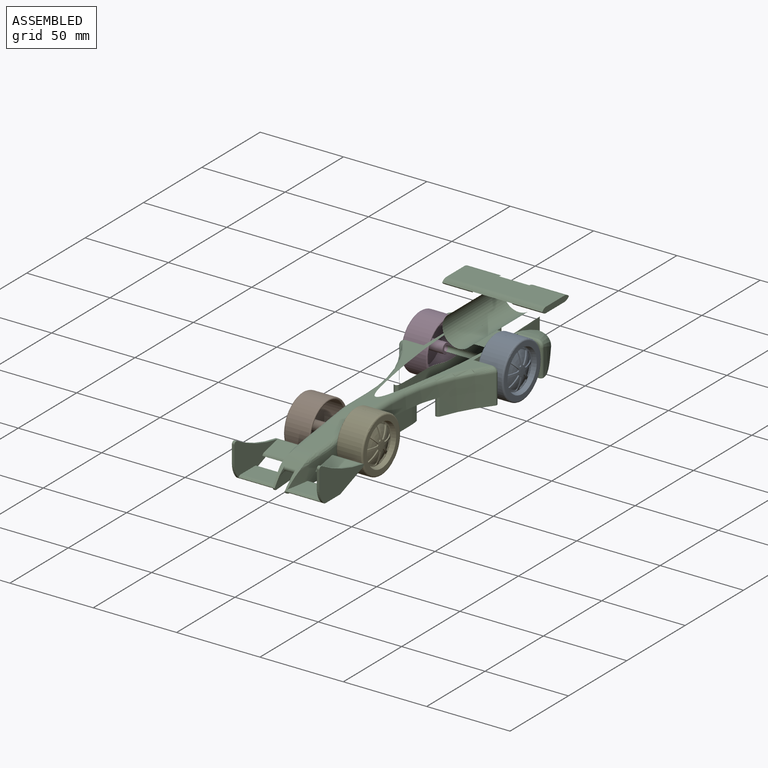
[diagram: assembled view]
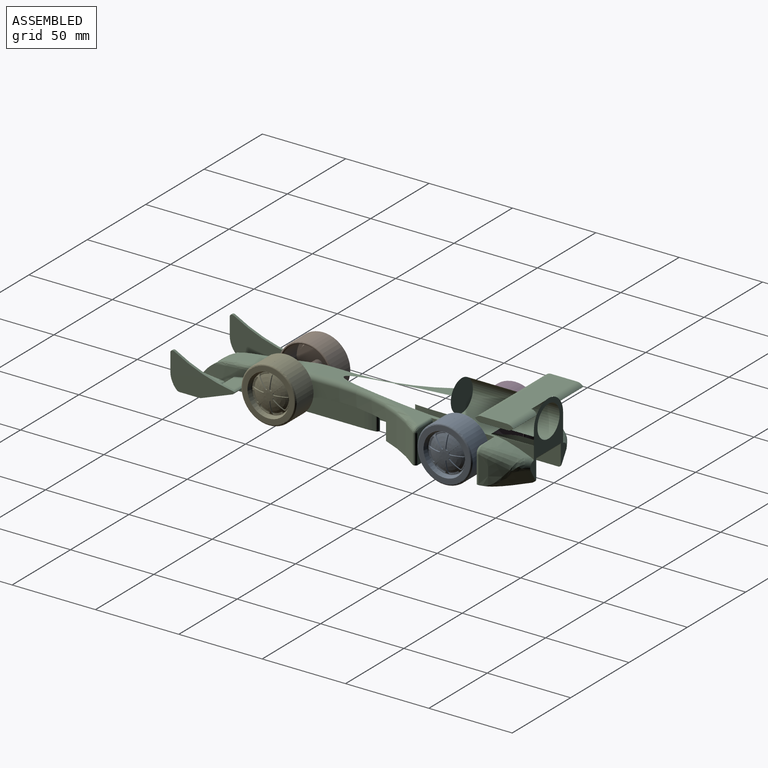
[diagram: assembled view, second angle]
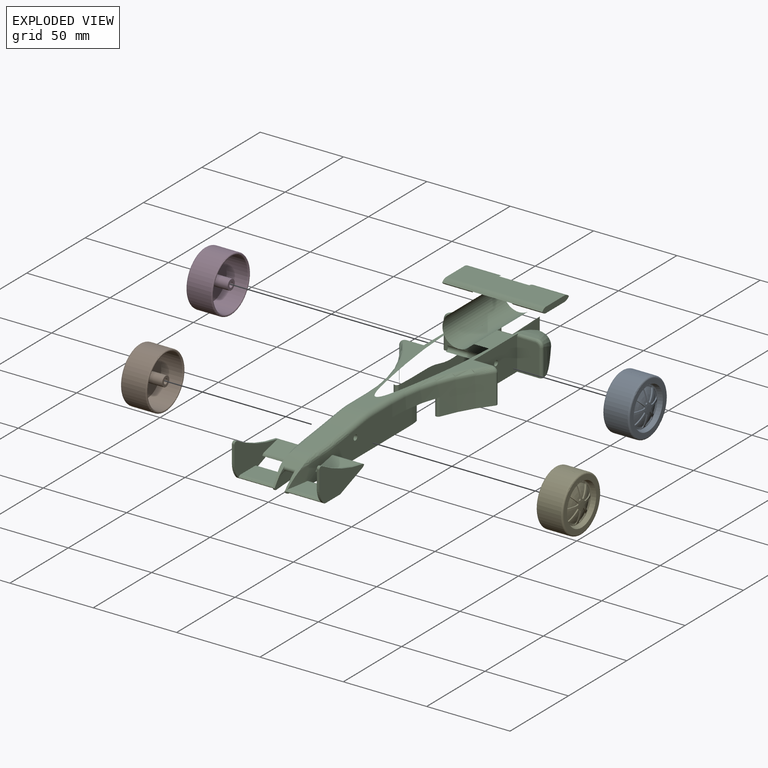
[diagram: exploded view]
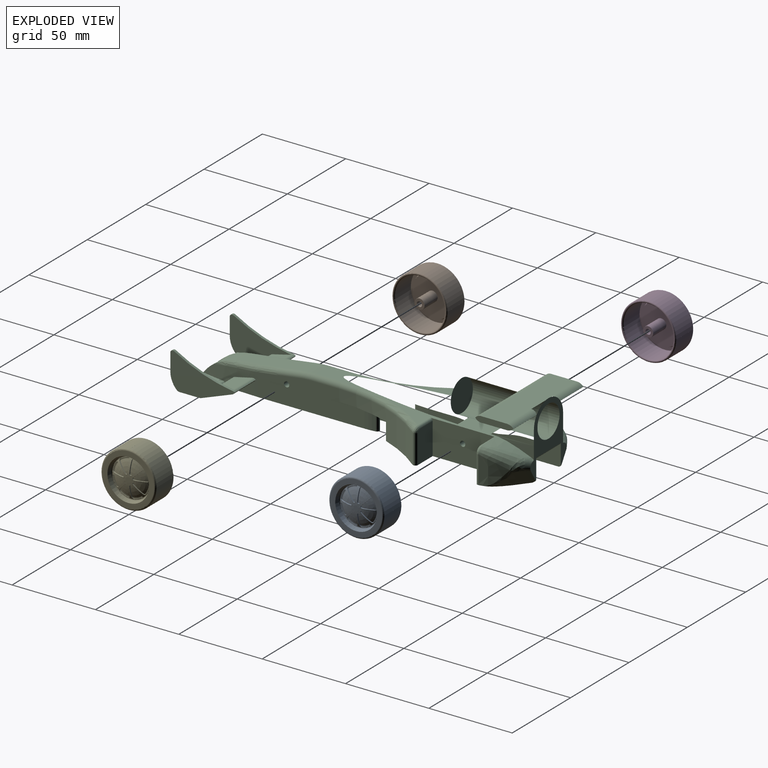
[diagram: exploded view, second angle]
ASSEMBLY  parts=5 mates=4
PART A: 90 faces, bbox 16.1x36.1x36.1 mm
  f0: cylinder r=16.5mm len=16.5mm, axis (1,0,0), area 362.7mm2, adj f1,f3,f86,f88
  f1: torus R=15.5mm, axis (1,0,0), area 159.3mm2, adj f0,f2,f7,f84,f85,f86,f87,f88
  f2: cylinder r=16.5mm len=33mm, axis (1,0,0), area 1088.4mm2, adj f1,f3,f84,f87
  f3: torus R=15.81mm, axis (1,0,0), area 215.3mm2, adj f0,f2,f8,f84,f85,f86,f87,f88
  f4: torus R=13.24mm, axis (1,0,0), area 10.3mm2, adj f7,f15
  f5: cylinder r=1.55mm len=13mm, axis (1,0,0), area 126.6mm2, adj f6,f13
  f6: cone r=1.55mm half-angle=51.1deg, axis (-1,0,0), area 9.7mm2, adj f5
  f7: plane 31x31mm, normal (1,0,0), area 203.7mm2, adj f1,f4
  f8: cylinder r=15.12mm len=30.24mm, axis (1,0,0), area 1282.5mm2, adj f3,f9
  f9: plane 30.24x30.24mm, normal (-1,0,0), area 177.4mm2, adj f8,f10
  f10: cone r=13.12mm half-angle=16.7deg, axis (1,0,0), area 249.3mm2, adj f9,f11
  f11: plane 24.44x24.44mm, normal (-1,0,0), area 439.9mm2, adj f10,f12
  f12: cylinder r=3.05mm len=11.19mm, axis (1,0,0), area 214.4mm2, adj f11,f13
  f13: plane 6.1x6.1mm, normal (-1,0,0), area 21.7mm2, adj f5,f12
  f14: plane 26.24x26.24mm, normal (1,0,0), area 49.9mm2, adj f15,f17
  f15: cylinder r=13.12mm len=26.24mm, axis (1,0,0), area 0.6mm2, adj f4,f14
  f16: plane 3x3mm, normal (1,0,0), area 7.1mm2, adj f61
  f17: cone r=12.5mm half-angle=16.7deg, axis (1,0,0), area 188.9mm2, adj f14,f18
  f18: torus R=11.31mm, axis (1,0,0), area 65.6mm2, adj f17,f24,f30,f36,f42,f48,f54,f60
  f19: cylinder r=0.75mm len=1.28mm, axis (1,0,0), area 1.3mm2, adj f20,f23,f61,f68
  f20: plane 7.03x3.12mm, normal (0,-1,0), area 4.9mm2, adj f19,f21,f61,f68
  f21: cylinder r=1mm len=1.16mm, axis (1,0,0), area 1.1mm2, adj f20,f24,f61,f68,f69
  f22: cylinder r=1mm len=1.52mm, axis (1,0,0), area 1.1mm2, adj f23,f24,f61,f68,f69
  f23: plane 5.1x5.1mm, normal (0,0.71,-0.71), area 4.9mm2, adj f19,f22,f61,f68
  f24: cylinder r=11.05mm len=4.66mm, axis (1,0,0), area 1.8mm2, adj f18,f21,f22,f69
  f25: cylinder r=1mm len=1.16mm, axis (1,0,0), area 1.1mm2, adj f26,f30,f61,f70,f71
  f26: plane 7.03x3.12mm, normal (0,0,-1), area 4.9mm2, adj f25,f27,f61,f71
  f27: cylinder r=0.75mm len=1.28mm, axis (1,0,0), area 1.3mm2, adj f26,f29,f61,f71
  f28: cylinder r=1mm len=1.52mm, axis (1,0,0), area 1.1mm2, adj f29,f30,f61,f70,f71
  f29: plane 5.1x5.1mm, normal (0,-0.71,0.71), area 4.9mm2, adj f27,f28,f61,f71
  f30: cylinder r=11.05mm len=4.66mm, axis (1,0,0), area 1.8mm2, adj f18,f25,f28,f70
  f31: plane 7.03x3.12mm, normal (0,0,1), area 4.9mm2, adj f32,f35,f61,f72
  f32: cylinder r=1mm len=1.16mm, axis (1,0,0), area 1.1mm2, adj f31,f36,f61,f72,f73
  f33: cylinder r=1mm len=1.52mm, axis (1,0,0), area 1.1mm2, adj f34,f36,f61,f72,f73
  f34: plane 5.1x5.1mm, normal (0,-0.71,-0.71), area 4.9mm2, adj f33,f35,f61,f72
  f35: cylinder r=0.75mm len=1.28mm, axis (1,0,0), area 1.3mm2, adj f31,f34,f61,f72
  f36: cylinder r=11.05mm len=4.66mm, axis (1,0,0), area 1.8mm2, adj f18,f32,f33,f73
  f37: plane 5.1x5.1mm, normal (0,0.71,0.71), area 4.9mm2, adj f38,f41,f61,f80
  f38: cylinder r=1mm len=1.52mm, axis (1,0,0), area 1.1mm2, adj f37,f42,f61,f80,f81
  f39: cylinder r=1mm len=1.16mm, axis (1,0,0), area 1.1mm2, adj f40,f42,f61,f80,f81
  f40: plane 7.03x3.12mm, normal (0,-1,0), area 4.9mm2, adj f39,f41,f61,f80
  f41: cylinder r=0.75mm len=1.28mm, axis (1,0,0), area 1.3mm2, adj f37,f40,f61,f80
  f42: cylinder r=11.05mm len=4.66mm, axis (1,0,0), area 1.8mm2, adj f18,f38,f39,f81
  f43: plane 7.03x3.12mm, normal (0,1,0), area 4.9mm2, adj f44,f47,f61,f74
  f44: cylinder r=1mm len=1.16mm, axis (1,0,0), area 1.1mm2, adj f43,f48,f61,f74,f75
  f45: cylinder r=1mm len=1.52mm, axis (1,0,0), area 1.1mm2, adj f46,f48,f61,f74,f75
  f46: plane 5.1x5.1mm, normal (0,-0.71,0.71), area 4.9mm2, adj f45,f47,f61,f74
  f47: cylinder r=0.75mm len=1.28mm, axis (1,0,0), area 1.3mm2, adj f43,f46,f61,f74
  f48: cylinder r=11.05mm len=4.66mm, axis (1,0,0), area 1.8mm2, adj f18,f44,f45,f75
  f49: plane 5.1x5.1mm, normal (0,0.71,-0.71), area 4.9mm2, adj f50,f53,f61,f76
  f50: cylinder r=1mm len=1.52mm, axis (1,0,0), area 1.1mm2, adj f49,f54,f61,f76,f77
  f51: cylinder r=1mm len=1.16mm, axis (1,0,0), area 1.1mm2, adj f52,f54,f61,f76,f77
  f52: plane 7.03x3.12mm, normal (0,0,1), area 4.9mm2, adj f51,f53,f61,f76
  f53: cylinder r=0.75mm len=1.28mm, axis (1,0,0), area 1.3mm2, adj f49,f52,f61,f76
  f54: cylinder r=11.05mm len=4.66mm, axis (1,0,0), area 1.8mm2, adj f18,f50,f51,f77
  f55: plane 7.03x3.12mm, normal (0,0,-1), area 4.9mm2, adj f56,f59,f61,f78
  f56: cylinder r=1mm len=1.16mm, axis (1,0,0), area 1.1mm2, adj f55,f60,f61,f78,f79
  f57: cylinder r=1mm len=1.52mm, axis (1,0,0), area 1.1mm2, adj f58,f60,f61,f78,f79
  f58: plane 5.1x5.1mm, normal (0,0.71,0.71), area 4.9mm2, adj f57,f59,f61,f78
  f59: cylinder r=0.75mm len=1.28mm, axis (1,0,0), area 1.3mm2, adj f55,f58,f61,f78
  f60: cylinder r=11.05mm len=4.66mm, axis (1,0,0), area 1.8mm2, adj f18,f56,f57,f79
  f61: torus R=1.5mm, axis (1,0,0), area 131.6mm2, adj f16,f18,f19,f20,f21,f22,f23,f25
  f62: plane 5.1x5.1mm, normal (0,-0.71,-0.71), area 4.9mm2, adj f61,f63,f66,f82
  f63: cylinder r=1mm len=1.52mm, axis (1,0,0), area 1.1mm2, adj f61,f62,f67,f82,f83
  f64: cylinder r=1mm len=1.16mm, axis (1,0,0), area 1.1mm2, adj f61,f65,f67,f82,f83
  f65: plane 7.03x3.12mm, normal (0,1,0), area 4.9mm2, adj f61,f64,f66,f82
  f66: cylinder r=0.75mm len=1.28mm, axis (1,0,0), area 1.3mm2, adj f61,f62,f65,f82
  f67: cylinder r=11.05mm len=4.66mm, axis (1,0,0), area 1.8mm2, adj f18,f63,f64,f83
  f68: torus R=1.5mm, axis (1,0,0), area 29.3mm2, adj f19,f20,f21,f22,f23,f69
  f69: plane 6.16x3.12mm, normal (1,0,0), area 4.5mm2, adj f21,f22,f24,f68
  f70: plane 6.16x3.12mm, normal (1,0,0), area 4.5mm2, adj f25,f28,f30,f71
  f71: torus R=1.5mm, axis (1,0,0), area 29.3mm2, adj f25,f26,f27,f28,f29,f70
  f72: torus R=1.5mm, axis (1,0,0), area 29.3mm2, adj f31,f32,f33,f34,f35,f73
  f73: plane 6.16x3.12mm, normal (1,0,0), area 4.5mm2, adj f32,f33,f36,f72
  f74: torus R=1.5mm, axis (1,0,0), area 29.3mm2, adj f43,f44,f45,f46,f47,f75
  f75: plane 6.16x3.12mm, normal (1,0,0), area 4.5mm2, adj f44,f45,f48,f74
  f76: torus R=1.5mm, axis (1,0,0), area 29.3mm2, adj f49,f50,f51,f52,f53,f77
  f77: plane 6.16x3.12mm, normal (1,0,0), area 4.5mm2, adj f50,f51,f54,f76
  f78: torus R=1.5mm, axis (1,0,0), area 29.3mm2, adj f55,f56,f57,f58,f59,f79
  f79: plane 6.16x3.12mm, normal (1,0,0), area 4.5mm2, adj f56,f57,f60,f78
  f80: torus R=1.5mm, axis (1,0,0), area 29.3mm2, adj f37,f38,f39,f40,f41,f81
  f81: plane 6.16x3.12mm, normal (1,0,0), area 4.5mm2, adj f38,f39,f42,f80
  f82: torus R=1.5mm, axis (1,0,0), area 29.3mm2, adj f62,f63,f64,f65,f66,f83
  f83: plane 6.16x3.12mm, normal (1,0,0), area 4.5mm2, adj f63,f64,f67,f82
  f84: plane 14.18x0.01mm, normal (0,1,0), area 0.1mm2, adj f1,f2,f3,f85
  f85: plane 14.18x0.01mm, normal (0,0,1), area 0.1mm2, adj f1,f3,f84,f86
  f86: plane 14.18x0.01mm, normal (0,-1,0), area 0.1mm2, adj f0,f1,f3,f85
  f87: plane 14.18x0.01mm, normal (0,0,1), area 0.1mm2, adj f1,f2,f3,f89
  f88: plane 14.18x0.01mm, normal (0,0,-1), area 0.1mm2, adj f0,f1,f3,f89
  f89: plane 14.18x0.01mm, normal (0,1,0), area 0.1mm2, adj f1,f3,f87,f88
PART B: same geometry as A
PART C: 230 faces, bbox 63.7x215x54 mm
  f0: cylinder r=2.21mm len=18.22mm, axis (-1,0,0), area 31.2mm2, adj f1,f2,f26,f47,f165,f225
  f1: cylinder r=166.39mm len=36.26mm, axis (0,0,1), area 326.8mm2, adj f0,f21,f23,f24,f25,f26,f27,f28
  f2: plane 37.24x21.36mm, normal (1,0,0), area 396.7mm2, adj f0,f23,f24,f25,f26,f27,f28,f29
  f3: plane 37.24x21.36mm, normal (-1,0,0), area 396.7mm2, adj f32,f33,f34,f35,f36,f37,f38,f39
  f4: plane 89.03x21.28mm, normal (0,0,-1), area 751mm2, adj f5,f9,f10,f19,f56,f117,f123,f157
  f5: plane 75.6x13.33mm, normal (1,0,0), area 745mm2, adj f4,f11,f22,f79,f87,f88,f89,f180
  f6: plane 75.6x13.33mm, normal (-1,0,0), area 745mm2, adj f7,f11,f22,f74,f79,f87,f88,f89
  f7: plane 87.91x20.17mm, normal (0,0,-1), area 751mm2, adj f6,f8,f20,f59,f112,f118,f120,f159
  f8: bspline ~18.38x16.51mm, area 135.8mm2, adj f7,f11,f205,f209,f210,f211,f212
  f9: bspline ~18.38x16.51mm, area 133.2mm2, adj f4,f11,f204,f213,f214,f215
  f10: plane 18.87x13.21mm, normal (0,-1,0), area 247.2mm2, adj f4,f56,f115,f116,f203
  f11: plane 40.05x31.34mm, normal (0,1,0), area 435.7mm2, adj f5,f6,f8,f9,f55,f69,f70,f92
  f12: plane 84.12x10.65mm, normal (-1,0,0), area 709.2mm2, adj f163,f187,f189,f190,f191,f192,f193,f200
  f13: extruded ~16.96x2.19mm, area 39.9mm2, adj f17,f22,f194,f199
  f14: extruded ~16.96x2.19mm, area 39.9mm2, adj f22,f82,f189,f200
  f15: cylinder r=1.6mm len=16mm, axis (-1,0,0), area 160.8mm2, adj f90,f91
  f16: bspline ~40x10mm, area 550.7mm2, adj f18,f54,f85,f86,f141,f142,f146,f147
  f17: bspline ~3.98x2.83mm, area 3.9mm2, adj f13,f80,f81,f84,f195
  f18: bspline ~3.98x2.9mm, area 3.3mm2, adj f16,f80,f84,f86,f198
  f19: cylinder r=92.82mm len=58.55mm, axis (0,0,1), area 759.9mm2, adj f4,f22,f90,f104,f123,f179
  f20: cylinder r=92.82mm len=58.55mm, axis (0,0,1), area 759.9mm2, adj f7,f22,f91,f97,f120,f183
  f21: plane 106.36x4.93mm, normal (0,0,-1), area 340.7mm2, adj f1,f90,f164,f184,f185,f186,f196,f229
  f22: plane 72.64x27.77mm, normal (0,0,-1), area 992.5mm2, adj f5,f6,f13,f14,f19,f20,f74,f81
  f23: plane 20.69x0.35mm, normal (0,-0.71,0.71), area 10.3mm2, adj f1,f2,f24,f129
  f24: cylinder r=2.21mm len=20.61mm, axis (-1,0,0), area 35.4mm2, adj f1,f2,f23,f25
  f25: plane 20.27x12.17mm, normal (0,0,1), area 233mm2, adj f1,f2,f24,f223
  f26: plane 17.26x10.87mm, normal (0,0.23,-0.97), area 189.1mm2, adj f0,f1,f2,f28
  f27: plane 17.3x10.87mm, normal (0,-0.23,0.97), area 189.4mm2, adj f1,f2,f31,f48
  f28: cylinder r=2.21mm len=17.41mm, axis (-1,0,0), area 30mm2, adj f1,f2,f26,f29
  f29: plane 17.45x0.43mm, normal (0,-0.52,-0.85), area 8.7mm2, adj f1,f2,f28,f30
  f30: plane 17.45x0.43mm, normal (0,-0.85,0.52), area 8.7mm2, adj f1,f2,f29,f31
  f31: cylinder r=2.21mm len=17.42mm, axis (-1,0,0), area 30.1mm2, adj f1,f2,f27,f30
  f32: cylinder r=2.21mm len=18.22mm, axis (1,0,0), area 31.2mm2, adj f3,f38,f42,f43,f58,f224
  f33: plane 20.27x12.17mm, normal (0,0,1), area 233mm2, adj f3,f34,f58,f216
  f34: cylinder r=2.21mm len=20.61mm, axis (1,0,0), area 35.4mm2, adj f3,f33,f35,f58
  f35: plane 20.69x0.35mm, normal (0,-0.71,0.71), area 10.3mm2, adj f3,f34,f58,f126
  f36: plane 17.45x0.43mm, normal (0,-0.52,-0.85), area 8.7mm2, adj f3,f37,f39,f58
  f37: cylinder r=2.21mm len=17.41mm, axis (1,0,0), area 30mm2, adj f3,f36,f38,f58
  f38: plane 17.26x10.87mm, normal (0,0.23,-0.97), area 189.1mm2, adj f3,f32,f37,f58
  f39: plane 17.45x0.43mm, normal (0,-0.85,0.52), area 8.7mm2, adj f3,f36,f41,f58
  f40: plane 17.3x10.87mm, normal (0,-0.23,0.97), area 189.4mm2, adj f3,f41,f45,f58
  f41: cylinder r=2.21mm len=17.42mm, axis (1,0,0), area 30.1mm2, adj f3,f39,f40,f58
  f42: plane 38.5x21.5mm, normal (1,0,0), area 453.8mm2, adj f32,f43,f44,f45,f49,f126,f127,f166
  f43: plane 18.2x0.43mm, normal (0,0.85,-0.52), area 9.1mm2, adj f32,f42,f44,f58
  f44: plane 18.2x0.43mm, normal (0,0.52,0.85), area 9.1mm2, adj f42,f43,f45,f58
  f45: cylinder r=2.21mm len=18.22mm, axis (1,0,0), area 30.3mm2, adj f3,f40,f42,f44,f58,f166
  f46: plane 21.77x12.17mm, normal (0,0,-1), area 251.3mm2, adj f1,f128,f165,f220
  f47: plane 18.2x0.43mm, normal (0,0.85,-0.52), area 9.1mm2, adj f0,f1,f130,f165
  f48: cylinder r=2.21mm len=18.22mm, axis (-1,0,0), area 30.3mm2, adj f1,f2,f27,f130,f165,f172
  f49: plane 21.77x12.17mm, normal (0,0,-1), area 251.3mm2, adj f42,f58,f127,f219
  f50: plane 23x3.5mm, normal (-1,0,0), area 72.4mm2, adj f51,f131,f132,f133,f134,f135,f153,f154
  f51: plane 21.11x15.72mm, normal (0,0,1), area 315.5mm2, adj f50,f55,f131,f153
  f52: plane 23x3.5mm, normal (1,0,0), area 72.4mm2, adj f53,f136,f137,f138,f139,f140,f149,f150
  f53: plane 18.6x15.65mm, normal (0,0,-1), area 280.4mm2, adj f52,f55,f138,f150
  f54: cylinder r=32.34mm len=21.75mm, axis (-1,0,0), area 205.7mm2, adj f1,f16,f58,f73,f103,f110,f141,f142
  f55: bspline ~135x31.11mm, area 5378.5mm2, adj f11,f51,f53,f65,f66,f67,f92,f93
  f56: plane 37.51x20.5mm, normal (-1,0,0), area 727.9mm2, adj f4,f10,f57,f67,f75,f115,f117,f119
  f57: plane 3.21x1.55mm, normal (-1,0,0), area 3mm2, adj f56,f75,f115
  f58: cylinder r=166.39mm len=36.26mm, axis (0,0,1), area 326.8mm2, adj f32,f33,f34,f35,f36,f37,f38,f39
  f59: plane 37.51x20.5mm, normal (1,0,0), area 727.9mm2, adj f7,f67,f76,f111,f112,f113,f118,f119
  f60: bspline ~25x15mm, area 90.4mm2, adj f64,f75,f115
  f61: bspline ~25x20mm, area 145.7mm2, adj f63,f114,f159,f212
  f62: bspline ~25x15mm, area 90.3mm2, adj f63,f76,f113
  f63: bspline ~26.4x18.09mm, area 156.5mm2, adj f61,f62,f77,f113,f211
  f64: bspline ~19.24x14.69mm, area 156.5mm2, adj f60,f78,f115,f201,f214
  f65: bspline ~135x17.28mm, area 183.9mm2, adj f55,f67,f68,f95
  f66: bspline ~135x17.28mm, area 183.9mm2, adj f55,f67,f94,f95
  f67: plane 110.74x51.43mm, normal (0,0,1), area 1013.6mm2, adj f55,f56,f59,f65,f66,f68,f72,f75
  f68: plane 9.31x0.16mm, normal (0,-1,0), area 1.5mm2, adj f65,f67,f93,f95
  f69: extruded ~25x7.89mm, area 9.1mm2, adj f11,f76,f92,f209
  f70: extruded ~25x7.89mm, area 9mm2, adj f11,f75,f93,f213
  f71: plane 12.97x10mm, normal (0,-0.14,0.99), area 131mm2, adj f72,f73,f100,f107
  f72: cylinder r=60mm len=10mm, axis (1,0,0), area 85.1mm2, adj f67,f71,f99,f106
  f73: bspline ~24.13x10.01mm, area 237.3mm2, adj f54,f71,f101,f102,f108,f109
  f74: cylinder r=30mm len=10mm, axis (0,0,-1), area 0.4mm2, adj f6,f22,f161,f182
  f75: extruded ~23.09x6.64mm, area 43.4mm2, adj f56,f57,f60,f67,f70,f78,f213
  f76: extruded ~23.05x6.62mm, area 43.5mm2, adj f59,f62,f67,f69,f77,f111,f209
  f77: bspline ~9.3x9.24mm, area 0.2mm2, adj f63,f76,f210
  f78: bspline ~9.3x9.24mm, area 0.2mm2, adj f64,f75,f213
  f79: plane 21x9.46mm, normal (0,0,-1), area 198.7mm2, adj f5,f6,f88,f207
  f80: cylinder r=41.85mm len=29.2mm, axis (-1,0,0), area 174.6mm2, adj f17,f18,f81,f82,f83,f84,f85,f86
  f81: cylinder r=2mm len=4.02mm, axis (-1,0,0), area 2.9mm2, adj f17,f22,f80,f82
  f82: bspline ~2.99x2.8mm, area 3.9mm2, adj f14,f80,f81,f83,f190
  f83: torus R=43.85mm, axis (1,0,0), area 26.6mm2, adj f80,f82,f85,f192
  f84: torus R=43.85mm, axis (-1,0,0), area 26mm2, adj f17,f18,f80,f197
  f85: bspline ~3.98x2.89mm, area 3.5mm2, adj f16,f80,f83,f86,f193
  f86: cylinder r=2mm len=4.02mm, axis (-1,0,0), area 2.1mm2, adj f16,f18,f80,f85
  f87: cylinder r=41.85mm len=21.53mm, axis (-1,0,0), area 457.4mm2, adj f5,f6,f88,f89
  f88: cylinder r=40mm len=21mm, axis (-1,0,0), area 218.6mm2, adj f5,f6,f79,f87
  f89: cylinder r=40mm len=21mm, axis (-1,0,0), area 218.6mm2, adj f5,f6,f22,f87
  f90: plane 64.05x17.5mm, normal (-1,0,0), area 946mm2, adj f1,f15,f19,f21,f22,f105,f106,f107
  f91: plane 64.05x17.5mm, normal (1,0,0), area 946mm2, adj f15,f20,f22,f58,f98,f99,f100,f101
  f92: extruded ~25x7.66mm, area 62.8mm2, adj f11,f55,f69,f94
  f93: extruded ~25x7.66mm, area 62.8mm2, adj f11,f55,f68,f70
  f94: plane 9.31x0.16mm, normal (0,-1,0), area 1.5mm2, adj f66,f67,f92,f95
  f95: cylinder r=9.5mm len=52mm, axis (0,1,0), area 3094.2mm2, adj f11,f65,f66,f67,f68,f94,f96
  f96: plane 19x19mm, normal (0,1,0), area 283.5mm2, adj f95
  f97: torus R=95.82mm, axis (0,0,1), area 299.3mm2, adj f20,f67,f98,f121
  f98: cylinder r=3mm len=15.74mm, axis (0,1,0), area 74.2mm2, adj f67,f91,f97,f99
  f99: torus R=57mm, axis (-1,0,0), area 39.4mm2, adj f72,f91,f98,f100
  f100: cylinder r=3mm len=13.4mm, axis (0,0.99,0.14), area 61.8mm2, adj f71,f91,f99,f101
  f101: bspline ~60.05x10.76mm, area 56.6mm2, adj f73,f91,f100,f102
  f102: bspline ~38.04x6.94mm, area 58.7mm2, adj f58,f73,f101,f103
  f103: bspline ~20.28x6.19mm, area 40.5mm2, adj f54,f58,f102
  f104: torus R=95.82mm, axis (0,0,1), area 299.3mm2, adj f19,f67,f105,f124
  f105: cylinder r=3mm len=15.74mm, axis (0,-1,0), area 74.2mm2, adj f67,f90,f104,f106
  f106: torus R=57mm, axis (-1,0,0), area 39.4mm2, adj f72,f90,f105,f107
  f107: cylinder r=3mm len=13.4mm, axis (0,-0.99,-0.14), area 61.7mm2, adj f71,f90,f106,f108
  f108: bspline ~42.12x9.17mm, area 56.7mm2, adj f73,f90,f107,f109
  f109: bspline ~28.63x6.22mm, area 58.7mm2, adj f1,f73,f108,f110
  f110: bspline ~15.82x5.64mm, area 37.4mm2, adj f1,f54,f109
  f111: plane 3.22x1.56mm, normal (1,0,0), area 3mm2, adj f59,f76,f113
  f112: plane 18.87x13.21mm, normal (0,-1,0), area 247.2mm2, adj f7,f59,f113,f114,f160
  f113: bspline ~18.2x4.17mm, area 38.8mm2, adj f59,f62,f63,f111,f112,f114
  f114: bspline ~26.23x1.77mm, area 41.7mm2, adj f61,f112,f113,f160
  f115: bspline ~19.2x4.15mm, area 39.3mm2, adj f10,f56,f57,f60,f64,f116
  f116: bspline ~27.22x1.77mm, area 41.7mm2, adj f10,f115,f157,f158,f201,f203
  f117: plane 19x12.64mm, normal (0,1,0), area 239.5mm2, adj f4,f56,f123,f124,f125
  f118: plane 19x12.64mm, normal (0,1,0), area 239.5mm2, adj f7,f59,f120,f121,f122
  f119: cylinder r=1.6mm len=30mm, axis (1,0,0), area 301.6mm2, adj f56,f59
  f120: cylinder r=1.5mm len=17.5mm, axis (0,0,1), area 59.2mm2, adj f7,f20,f118,f121
  f121: bspline ~5.26x3.92mm, area 13.1mm2, adj f97,f118,f120,f122
  f122: cylinder r=1.5mm len=10.71mm, axis (1,0,0), area 25.2mm2, adj f59,f67,f118,f121
  f123: cylinder r=1.5mm len=17.5mm, axis (0,0,1), area 59.2mm2, adj f4,f19,f117,f124
  f124: bspline ~5.26x3.92mm, area 13.1mm2, adj f104,f117,f123,f125
  f125: cylinder r=1.5mm len=10.71mm, axis (1,0,0), area 25.2mm2, adj f56,f67,f117,f124
  f126: plane 22.19x0.35mm, normal (0,-0.71,-0.71), area 11.1mm2, adj f35,f42,f58,f127,f171
  f127: cylinder r=2.21mm len=22.11mm, axis (1,0,0), area 38mm2, adj f42,f49,f58,f126
  f128: cylinder r=2.21mm len=22.11mm, axis (-1,0,0), area 38mm2, adj f1,f46,f129,f165
  f129: plane 22.19x0.35mm, normal (0,-0.71,-0.71), area 11.1mm2, adj f1,f23,f128,f165,f173
  f130: plane 18.2x0.43mm, normal (0,0.52,0.85), area 9.1mm2, adj f1,f47,f48,f165
  f131: cylinder r=5.37mm len=20.94mm, axis (-1,0,0), area 86.2mm2, adj f50,f51,f55,f132
  f132: plane 19.93x0.18mm, normal (0,0.71,0.71), area 5mm2, adj f50,f55,f131,f133
  f133: plane 19.82x0.18mm, normal (0,0.71,-0.71), area 4.9mm2, adj f50,f55,f132,f134
  f134: cylinder r=5.37mm len=19.68mm, axis (-1,0,0), area 80.5mm2, adj f50,f55,f133,f135
  f135: plane 18.6x15.65mm, normal (0,0,-1), area 280.4mm2, adj f50,f55,f134,f156
  f136: plane 19.82x0.18mm, normal (0,0.71,-0.71), area 4.9mm2, adj f52,f55,f137,f138
  f137: plane 19.93x0.18mm, normal (0,0.71,0.71), area 5mm2, adj f52,f55,f136,f140
  f138: cylinder r=5.37mm len=19.68mm, axis (1,0,0), area 80.5mm2, adj f52,f53,f55,f136
  f139: plane 21.11x15.72mm, normal (0,0,1), area 315.5mm2, adj f52,f55,f140,f149
  f140: cylinder r=5.37mm len=20.94mm, axis (1,0,0), area 86.2mm2, adj f52,f55,f137,f139
  f141: plane 2.31x1.94mm, normal (0,-0.77,0.64), area 3.4mm2, adj f16,f54,f58,f228
  f142: plane 2.31x1.94mm, normal (0,-0.77,0.64), area 3.4mm2, adj f1,f16,f54,f229
  f143: cylinder r=1.5mm len=6.6mm, axis (1,0,0), area 15mm2, adj f54,f144,f145,f148
  f144: plane 4.32x3.38mm, normal (1,0,0), area 4.2mm2, adj f54,f143,f147,f148
  f145: plane 4.32x3.38mm, normal (-1,0,0), area 4.2mm2, adj f54,f143,f146,f148
  f146: bspline ~6.52x1.51mm, area 1.3mm2, adj f16,f54,f145,f148
  f147: bspline ~6.52x1.51mm, area 1.3mm2, adj f16,f54,f144,f148
  f148: bspline ~7.6x1.76mm, area 4.2mm2, adj f16,f143,f144,f145,f146,f147
  f149: cylinder r=4.16mm len=19.75mm, axis (1,0,0), area 62.9mm2, adj f52,f55,f139,f152
  f150: cylinder r=4.16mm len=18.08mm, axis (1,0,0), area 58.4mm2, adj f52,f53,f55,f151
  f151: plane 18.36x0.53mm, normal (0,-0.71,-0.71), area 13.7mm2, adj f52,f55,f150,f152
  f152: plane 18.71x0.53mm, normal (0,-0.71,0.71), area 13.9mm2, adj f52,f55,f149,f151
  f153: cylinder r=4.16mm len=19.75mm, axis (-1,0,0), area 62.9mm2, adj f50,f51,f55,f154
  f154: plane 18.71x0.53mm, normal (0,-0.71,0.71), area 13.9mm2, adj f50,f55,f153,f155
  f155: plane 18.36x0.53mm, normal (0,-0.71,-0.71), area 13.7mm2, adj f50,f55,f154,f156
  f156: cylinder r=4.16mm len=18.08mm, axis (-1,0,0), area 58.4mm2, adj f50,f55,f135,f155
  f157: cylinder r=1.5mm len=0.5mm, axis (0,0,1), area 0.2mm2, adj f4,f116,f158,f203
  f158: extruded ~0.5x0.04mm, area 0mm2, adj f4,f116,f157,f202
  f159: extruded ~4.69x1.19mm, area 2.1mm2, adj f7,f61,f160,f212
  f160: extruded ~1.74x1.5mm, area 1.3mm2, adj f7,f112,f114,f159
  f161: extruded ~0.5x0.04mm, area 0mm2, adj f6,f7,f74,f182
  f162: extruded ~21.8x1.46mm, area 11mm2, adj f16,f163,f191,f227,f228
  f163: plane 106.42x4.96mm, normal (0,0,-1), area 340.6mm2, adj f12,f58,f91,f162,f187,f188,f191,f228
  f164: extruded ~21.8x1.46mm, area 11mm2, adj f16,f21,f196,f226,f229
  f165: plane 38.5x21.5mm, normal (-1,0,0), area 453.8mm2, adj f0,f46,f47,f48,f128,f129,f130,f172
  f166: cylinder r=98mm len=34.99mm, axis (1,0,0), area 55.9mm2, adj f3,f42,f45,f167
  f167: cylinder r=1.5mm len=2.25mm, axis (1,0,0), area 4.7mm2, adj f3,f42,f166,f168
  f168: plane 10.5x1.5mm, normal (0,-1,0), area 15.8mm2, adj f3,f42,f167,f169
  f169: cylinder r=11.54mm len=4.76mm, axis (1,0,0), area 7.4mm2, adj f3,f42,f168,f170
  f170: plane 1.5x0.49mm, normal (0,-0.91,-0.41), area 0.8mm2, adj f3,f42,f169,f171
  f171: cylinder r=11.05mm len=3.25mm, axis (1,0,0), area 6mm2, adj f3,f42,f126,f170
  f172: cylinder r=98mm len=34.99mm, axis (-1,0,0), area 55.9mm2, adj f2,f48,f165,f177
  f173: cylinder r=11.05mm len=3.25mm, axis (-1,0,0), area 6mm2, adj f2,f129,f165,f174
  f174: plane 1.5x0.49mm, normal (0,-0.91,-0.41), area 0.8mm2, adj f2,f165,f173,f175
  f175: cylinder r=11.54mm len=4.76mm, axis (-1,0,0), area 7.4mm2, adj f2,f165,f174,f176
  f176: plane 10.5x1.5mm, normal (0,-1,0), area 15.8mm2, adj f2,f165,f175,f177
  f177: cylinder r=1.5mm len=2.25mm, axis (-1,0,0), area 4.7mm2, adj f2,f165,f172,f176
  f178: cylinder r=136.18mm len=11.45mm, axis (0,0,-1), area 120.4mm2, adj f4,f22,f179,f180,f181
  f179: cylinder r=1.5mm len=10.5mm, axis (0,0,-1), area 42.5mm2, adj f4,f19,f22,f178
  f180: extruded ~0.5x0.04mm, area 0mm2, adj f4,f5,f178,f181
  f181: cylinder r=30mm len=10mm, axis (0,0,-1), area 0.4mm2, adj f5,f22,f178,f180
  f182: cylinder r=136.18mm len=11.45mm, axis (0,0,-1), area 120.4mm2, adj f7,f22,f74,f161,f183
  f183: cylinder r=1.5mm len=10.5mm, axis (0,0,-1), area 42.5mm2, adj f7,f20,f22,f182
  f184: plane 84.11x10.64mm, normal (1,0,0), area 709.5mm2, adj f21,f185,f194,f195,f196,f197,f198,f199
  f185: cylinder r=1.5mm len=10.5mm, axis (0,0,-1), area 46.9mm2, adj f21,f22,f184,f186
  f186: cylinder r=37.75mm len=10.5mm, axis (0,0,-1), area 65.9mm2, adj f21,f22,f90,f185
  f187: cylinder r=1.5mm len=10.5mm, axis (0,0,-1), area 46.9mm2, adj f12,f22,f163,f188
  f188: cylinder r=37.75mm len=10.5mm, axis (0,0,-1), area 65.9mm2, adj f22,f91,f163,f187
  f189: cylinder r=1mm len=16.96mm, axis (0,-1,0), area 13.5mm2, adj f12,f14,f190,f200
  f190: bspline ~1.97x1.13mm, area 1.8mm2, adj f12,f82,f189,f192
  f191: bspline ~16.82x9.65mm, area 11.2mm2, adj f12,f16,f162,f163,f193
  f192: torus R=42.98mm, axis (1,0,0), area 27mm2, adj f12,f83,f190,f193
  f193: bspline ~2.59x1.31mm, area 1.7mm2, adj f12,f16,f85,f191,f192
  f194: cylinder r=1mm len=16.96mm, axis (0,-1,0), area 13.5mm2, adj f13,f184,f195,f199
  f195: bspline ~1.97x1.13mm, area 1.8mm2, adj f17,f184,f194,f197
  f196: bspline ~17.16x11.66mm, area 11.2mm2, adj f16,f21,f164,f184,f198
  f197: torus R=42.98mm, axis (1,0,0), area 27mm2, adj f84,f184,f195,f198
  f198: bspline ~2.65x1.31mm, area 1.7mm2, adj f16,f18,f184,f196,f197
  f199: bspline ~21.32x2.49mm, area 42.7mm2, adj f13,f22,f184,f194
  f200: bspline ~21.32x2.49mm, area 42.7mm2, adj f12,f14,f22,f189
  f201: bspline ~25x20mm, area 145.7mm2, adj f64,f116,f202,f215
  f202: extruded ~4.69x1.19mm, area 2.1mm2, adj f4,f158,f201,f215
  f203: extruded ~1.48x1.26mm, area 1.1mm2, adj f4,f10,f116,f157
  f204: cylinder r=1.5mm len=2.04mm, axis (-1,0,0), area 2.5mm2, adj f4,f5,f9,f11
  f205: cylinder r=1.5mm len=2.04mm, axis (-1,0,0), area 2.5mm2, adj f6,f7,f8,f11
  f206: plane 21x7.25mm, normal (0,0.2,-0.98), area 155.4mm2, adj f5,f6,f207,f208
  f207: cylinder r=20mm len=21mm, axis (1,0,0), area 82.9mm2, adj f5,f6,f79,f206
  f208: cylinder r=1mm len=21mm, axis (-1,0,0), area 28.8mm2, adj f5,f6,f11,f206
  f209: bspline ~12.71x9.9mm, area 20.2mm2, adj f8,f11,f69,f76,f210
  f210: bspline ~6.31x4.05mm, area 6.6mm2, adj f8,f77,f209,f211
  f211: bspline ~9.22x7.11mm, area 39.1mm2, adj f8,f63,f210,f212
  f212: bspline ~11.98x9.94mm, area 24.5mm2, adj f7,f8,f61,f159,f211
  f213: bspline ~7.29x7.22mm, area 26.8mm2, adj f9,f11,f70,f75,f78,f214
  f214: bspline ~8.55x6.7mm, area 39.1mm2, adj f9,f64,f213,f215
  f215: bspline ~11.98x9.94mm, area 24.5mm2, adj f4,f9,f201,f202,f214
  f216: cylinder r=2.21mm len=18.17mm, axis (1,0,0), area 31.3mm2, adj f3,f33,f58,f217
  f217: plane 17.97x0.35mm, normal (0,0.71,0.71), area 9mm2, adj f3,f58,f216,f218
  f218: plane 17.97x0.35mm, normal (0,0.71,-0.71), area 9mm2, adj f3,f58,f217,f219
  f219: cylinder r=2.21mm len=19.67mm, axis (1,0,0), area 32.5mm2, adj f3,f42,f49,f58,f218,f224
  f220: cylinder r=2.21mm len=19.67mm, axis (-1,0,0), area 32.5mm2, adj f1,f2,f46,f165,f221,f225
  f221: plane 17.97x0.35mm, normal (0,0.71,-0.71), area 9mm2, adj f1,f2,f220,f222
  f222: plane 17.97x0.35mm, normal (0,0.71,0.71), area 9mm2, adj f1,f2,f221,f223
  f223: cylinder r=2.21mm len=18.17mm, axis (-1,0,0), area 31.3mm2, adj f1,f2,f25,f222
  f224: plane 18.77x7.02mm, normal (0,0.35,-0.94), area 30.1mm2, adj f3,f32,f42,f219
  f225: plane 18.77x7.02mm, normal (0,0.35,-0.94), area 30.1mm2, adj f0,f2,f165,f220
  f226: extruded ~0.12x0.12mm, area 0mm2, adj f16,f164,f229
  f227: extruded ~0.12x0.12mm, area 0mm2, adj f16,f162,f228
  f228: cylinder r=1.5mm len=1.5mm, axis (1,0,0), area 2.6mm2, adj f16,f58,f141,f162,f163,f227
  f229: cylinder r=1.5mm len=1.5mm, axis (1,0,0), area 2.6mm2, adj f1,f16,f21,f142,f164,f226
PART D: same geometry as A
PART E: same geometry as A
PLACE A t=(-10.86,11.64,-52.54)mm
PLACE B rot(axis=(0,1,0),180deg) t=(-65.24,-98.86,-52.54)mm
PLACE C t=(-41.55,52.64,-35.04)mm
PLACE D rot(axis=(0,1,0),180deg) t=(-72.24,11.64,-52.54)mm
PLACE E t=(-17.86,-98.86,-52.54)mm
MATE revolute A.f0 <-> C.f119  axis (1,0,0) through (-26.55,11.64,-52.54)mm
MATE revolute E.f0 <-> C.f15  axis (-1,0,0) through (-33.55,-98.86,-52.54)mm
MATE revolute B.f0 <-> C.f15  axis (1,0,0) through (-49.55,-98.86,-52.54)mm
MATE revolute D.f0 <-> C.f119  axis (1,0,0) through (-56.55,11.64,-52.54)mm
